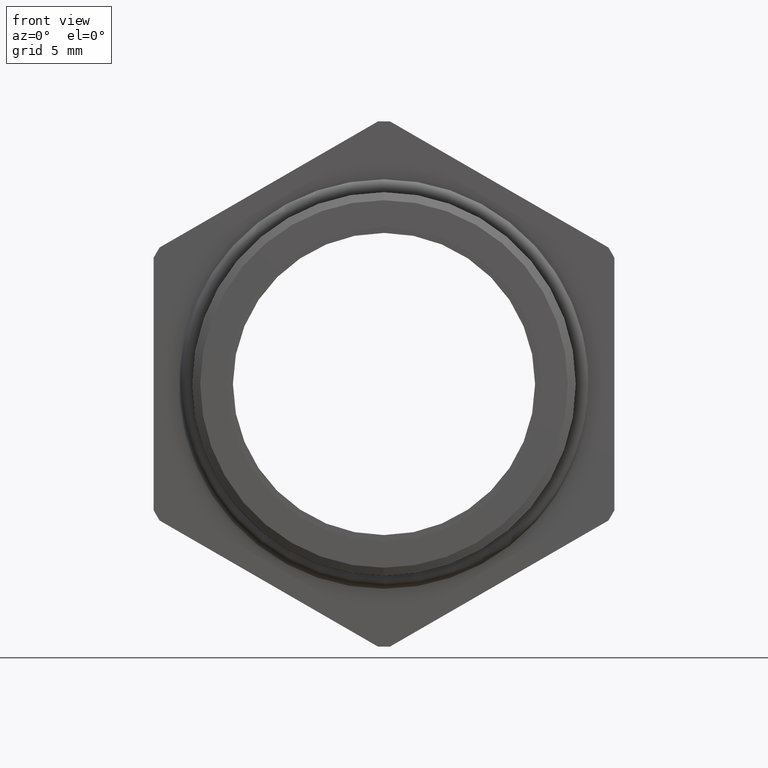
[diagram: clean part render]
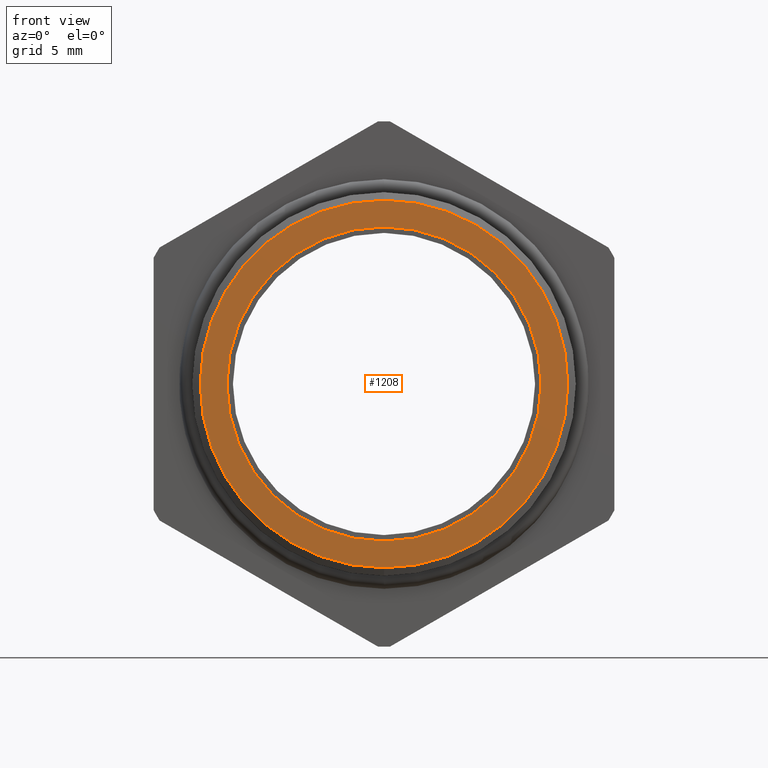
[diagram: same view with one face highlighted and labeled with its STEP entity id]
A machine part, front view. The second image highlights one B-rep face of the part: STEP entity #1208.
In plain terms, the highlighted planar face has unit normal (0, -1, -0).
Its self-contained STEP definition (entity closure, byte-faithful):
#383 = VERTEX_POINT ( 'NONE', #5806 ) ;
#384 = EDGE_CURVE ( 'NONE', #383, #386, #5801, .T. ) ;
#386 = VERTEX_POINT ( 'NONE', #5792 ) ;
#1208 = ADVANCED_FACE ( 'NONE', ( #3273, #3268 ), #3267, .T. ) ;
#1209 = EDGE_LOOP ( 'NONE', ( #1210, #1211 ) ) ;
#1210 = ORIENTED_EDGE ( 'NONE', *, *, #384, .F. ) ;
#1211 = ORIENTED_EDGE ( 'NONE', *, *, #1212, .F. ) ;
#1212 = EDGE_CURVE ( 'NONE', #386, #383, #3265, .T. ) ;
#1213 = EDGE_LOOP ( 'NONE', ( #1214, #1301 ) ) ;
#1214 = ORIENTED_EDGE ( 'NONE', *, *, #1300, .F. ) ;
#1300 = EDGE_CURVE ( 'NONE', #2039, #2048, #3383, .T. ) ;
#1301 = ORIENTED_EDGE ( 'NONE', *, *, #2038, .F. ) ;
#2038 = EDGE_CURVE ( 'NONE', #2048, #2039, #4286, .T. ) ;
#2039 = VERTEX_POINT ( 'NONE', #4281 ) ;
#2048 = VERTEX_POINT ( 'NONE', #4326 ) ;
#3258 = DIRECTION ( 'NONE',  ( 0.0000000000000000000, 0.0000000000000000000, -1.000000000000000000 ) ) ;
#3259 = DIRECTION ( 'NONE',  ( -0.0000000000000000000, -1.000000000000000000, -0.0000000000000000000 ) ) ;
#3260 = CARTESIAN_POINT ( 'NONE',  ( 0.0000000000000000000, 0.03755489058294796100, 0.0000000000000000000 ) ) ;
#3261 = AXIS2_PLACEMENT_3D ( 'NONE', #3260, #3259, #3258 ) ;
#3262 = DIRECTION ( 'NONE',  ( 0.0000000000000000000, 0.0000000000000000000, -1.000000000000000000 ) ) ;
#3263 = DIRECTION ( 'NONE',  ( 0.0000000000000000000, -1.000000000000000000, -0.0000000000000000000 ) ) ;
#3264 = AXIS2_PLACEMENT_3D ( 'NONE', #3266, #3263, #3262 ) ;
#3265 = CIRCLE ( 'NONE', #3261, 0.2692774846989676200 ) ;
#3266 = CARTESIAN_POINT ( 'NONE',  ( 0.2589880461203001900, 0.03755489058294796100, 0.0000000000000000000 ) ) ;
#3267 = PLANE ( 'NONE',  #3264 ) ;
#3268 = FACE_OUTER_BOUND ( 'NONE', #1213, .T. ) ;
#3273 = FACE_BOUND ( 'NONE', #1209, .T. ) ;
#3379 = DIRECTION ( 'NONE',  ( 0.0000000000000000000, 0.0000000000000000000, -1.000000000000000000 ) ) ;
#3380 = DIRECTION ( 'NONE',  ( 0.0000000000000000000, 1.000000000000000000, 0.0000000000000000000 ) ) ;
#3381 = CARTESIAN_POINT ( 'NONE',  ( 0.0000000000000000000, 0.03755489058294796100, 0.0000000000000000000 ) ) ;
#3382 = AXIS2_PLACEMENT_3D ( 'NONE', #3381, #3380, #3379 ) ;
#3383 = CIRCLE ( 'NONE', #3382, 0.3150000000000000000 ) ;
#4281 = CARTESIAN_POINT ( 'NONE',  ( 0.0000000000000000000, 0.03755489058294796100, 0.3150000000000000000 ) ) ;
#4282 = DIRECTION ( 'NONE',  ( 0.0000000000000000000, 0.0000000000000000000, -1.000000000000000000 ) ) ;
#4283 = DIRECTION ( 'NONE',  ( 0.0000000000000000000, 1.000000000000000000, 0.0000000000000000000 ) ) ;
#4284 = CARTESIAN_POINT ( 'NONE',  ( 0.0000000000000000000, 0.03755489058294796100, 0.0000000000000000000 ) ) ;
#4285 = AXIS2_PLACEMENT_3D ( 'NONE', #4284, #4283, #4282 ) ;
#4286 = CIRCLE ( 'NONE', #4285, 0.3150000000000000000 ) ;
#4326 = CARTESIAN_POINT ( 'NONE',  ( 3.857637417314162700E-017, 0.03755489058294796100, -0.3150000000000000000 ) ) ;
#5792 = CARTESIAN_POINT ( 'NONE',  ( 3.301590527599375100E-017, 0.03755489058294796100, -0.2692774846989676200 ) ) ;
#5797 = DIRECTION ( 'NONE',  ( 0.0000000000000000000, 0.0000000000000000000, -1.000000000000000000 ) ) ;
#5798 = DIRECTION ( 'NONE',  ( -0.0000000000000000000, -1.000000000000000000, -0.0000000000000000000 ) ) ;
#5799 = CARTESIAN_POINT ( 'NONE',  ( 0.0000000000000000000, 0.03755489058294796100, 0.0000000000000000000 ) ) ;
#5800 = AXIS2_PLACEMENT_3D ( 'NONE', #5799, #5798, #5797 ) ;
#5801 = CIRCLE ( 'NONE', #5800, 0.2692774846989676200 ) ;
#5806 = CARTESIAN_POINT ( 'NONE',  ( 0.0000000000000000000, 0.03755489058294796100, 0.2692774846989676200 ) ) ;